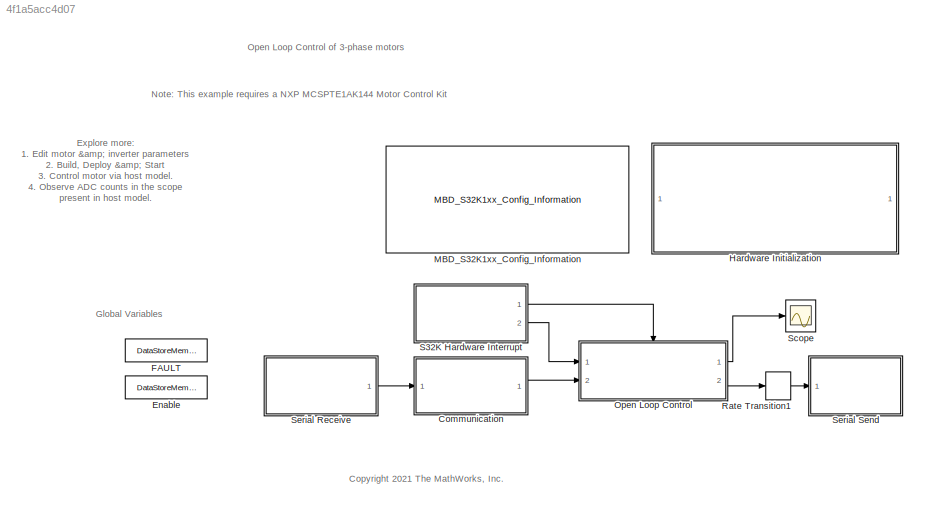
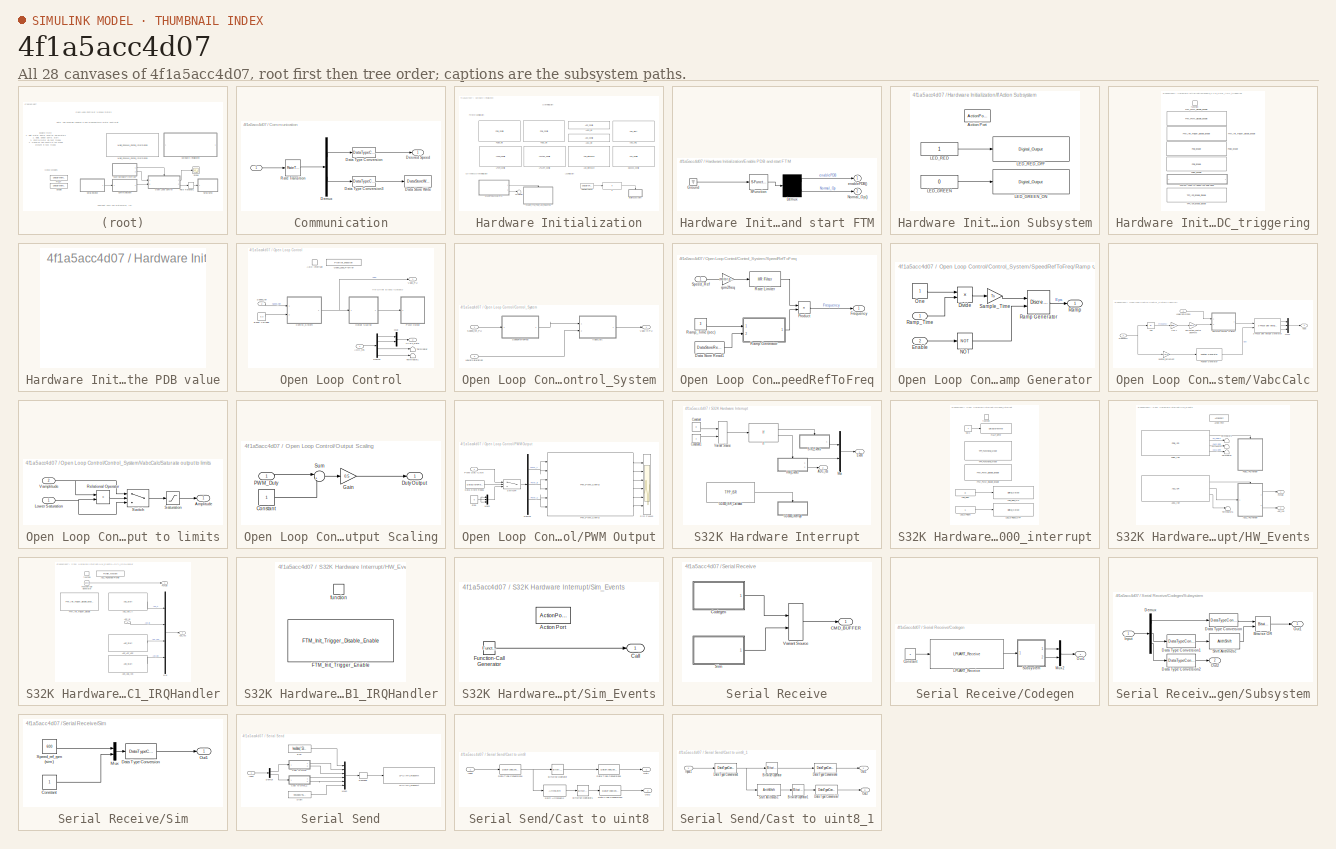
[diagram: thumbnail index - all 28 canvases of the model, root first then tree order]
MODEL slx_4f1a5acc4d07
KIND model
CONFIG AbsTol = auto
CONFIG EnableMultiTasking = on
CONFIG FixedStep = auto
CONFIG InitFcn = mbd_s32k_consistency_checks(bdroot(gcs));
CONFIG MaxStep = auto
CONFIG MinStep = auto
CONFIG PreLoadFcn = mcb_open_loop_control_MCSPTE1AK144_data;
CONFIG RelTol = 1e-3
CONFIG SampleTimeConstraint = Unconstrained
CONFIG SolverName = FixedStepDiscrete
CONFIG StartTime = 0.0
CONFIG StopTime = 6
BLOCK [SubSystem] Communication
  Ports = [1, 1]
  RequestExecContextInheritance = off
BLOCK [Inport] Communication/ 
BLOCK [DataStoreWrite] Communication/Data Store Write
  DataStoreName = Enable
  IndexOptions = Index vector (dialog)
  Indices = 1
  OutputSizes = 1
  Ports = [1]
BLOCK [DataTypeConversion] Communication/Data Type Conversion
  ConvertRealWorld = Stored Integer (SI)
  OutDataTypeStr = int16
  RndMeth = Simplest
  SaturateOnIntegerOverflow = off
BLOCK [DataTypeConversion] Communication/Data Type Conversion3
  OutDataTypeStr = boolean
  RndMeth = Simplest
  SaturateOnIntegerOverflow = off
BLOCK [Demux] Communication/Demux
  Outputs = 2
  Ports = [1, 2]
BLOCK [Outport] Communication/Desired Speed
  VectorParamsAs1DForOutWhenUnconnected = off
BLOCK [RateTransition] Communication/Rate Transition
  Deterministic = off
  InitialCondition = [0 0]
  OutPortSampleTime = Ts
BLOCK [DataStoreMemory] Enable
  DataStoreName = Enable
  OutDataTypeStr = boolean
  ReadBeforeWriteMsg = warning
  ShowAdditionalParam = off
  WriteAfterReadMsg = warning
  WriteAfterWriteMsg = warning
BLOCK [DataStoreMemory] FAULT
  DataStoreName = FAULT
  OutDataTypeStr = boolean
  ShowAdditionalParam = off
  WriteAfterReadMsg = warning
  WriteAfterWriteMsg = warning
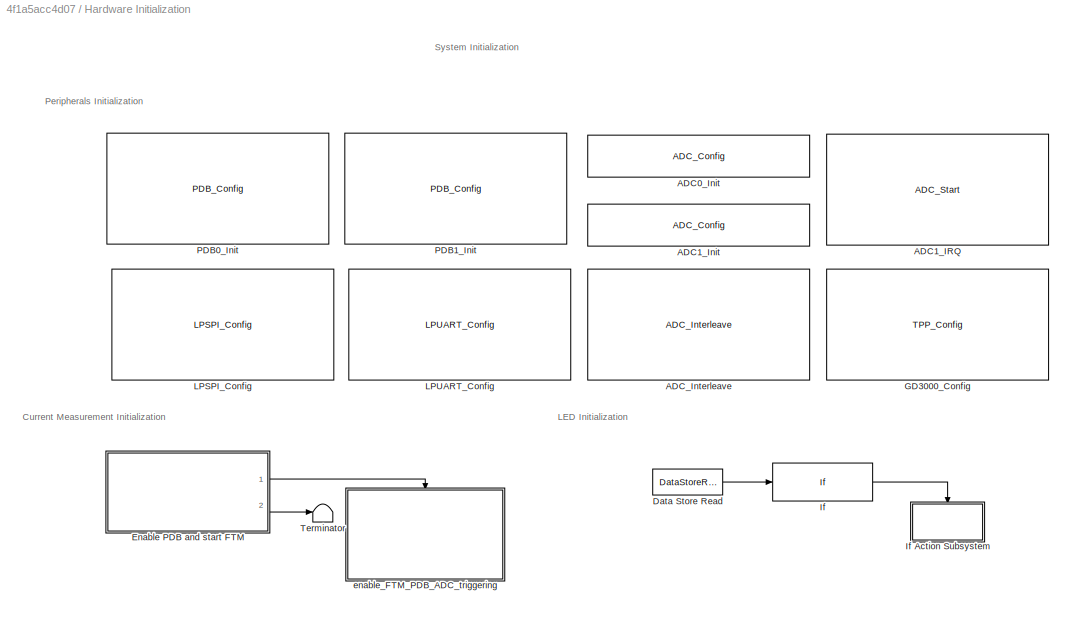
BLOCK [SubSystem] Hardware Initialization
  Ports = []
  Priority = 2
  RequestExecContextInheritance = off
BLOCK [Reference] Hardware Initialization/ADC0_Init  REF=mbd_s32k1xx_ec_toolbox/Motor Control Blocks/ADC Blocks/ADC_Config
  Ports = []
  Priority = 3
  SourceBlock = mbd_s32k1xx_ec_toolbox/Motor Control Blocks/ADC Blocks/ADC_Config
  SourceType = adc_s32k_config_block
BLOCK [Reference] Hardware Initialization/ADC1_IRQ  REF=mbd_s32k1xx_ec_toolbox/Motor Control Blocks/ADC Blocks/ADC_Start
  Ports = []
  Priority = 5
  SourceBlock = mbd_s32k1xx_ec_toolbox/Motor Control Blocks/ADC Blocks/ADC_Start
  SourceType = adc_s32k_start_block
BLOCK [Reference] Hardware Initialization/ADC1_Init  REF=mbd_s32k1xx_ec_toolbox/Motor Control Blocks/ADC Blocks/ADC_Config
  Ports = []
  Priority = 4
  SourceBlock = mbd_s32k1xx_ec_toolbox/Motor Control Blocks/ADC Blocks/ADC_Config
  SourceType = adc_s32k_config_block
BLOCK [Reference] Hardware Initialization/ADC_Interleave  REF=mbd_s32k1xx_ec_toolbox/Motor Control Blocks/ADC Blocks/ADC_Interleave
  Ports = []
  SourceBlock = mbd_s32k1xx_ec_toolbox/Motor Control Blocks/ADC Blocks/ADC_Interleave
  SourceType = adc_s32k_interleave_block
BLOCK [DataStoreRead] Hardware Initialization/Data Store Read
  DataStoreName = FAULT
  IndexOptions = Index vector (dialog)
  Indices = 1
  OutputSizes = 1
  Ports = [0, 1]
BLOCK [SubSystem] Hardware Initialization/Enable PDB and start FTM
  ErrorFcn = Stateflow.Translate.translate
  PermitHierarchicalResolution = ExplicitOnly
  Ports = [0, 2]
  RequestExecContextInheritance = off
  SFBlockType = Chart
  TreatAsAtomicUnit = on
BLOCK [Demux] Hardware Initialization/Enable PDB and start FTM/ Demux 
  Outputs = 2
  Ports = [1, 2]
BLOCK [Ground] Hardware Initialization/Enable PDB and start FTM/ Ground 
BLOCK [S-Function] Hardware Initialization/Enable PDB and start FTM/ SFunction 
  EnableBusSupport = on
  FunctionName = sf_sfun
  PortCounts = [1 1]
  Ports = [1, 1]
  SFcnIsStateOwnerBlock = off
  SFunctionDeploymentMode = off
  Tag = Stateflow S-Function 1
BLOCK [Outport] Hardware Initialization/Enable PDB and start FTM/Normal_Op()
  Port = 2
  VectorParamsAs1DForOutWhenUnconnected = off
BLOCK [Outport] Hardware Initialization/Enable PDB and start FTM/enablePDB()
  VectorParamsAs1DForOutWhenUnconnected = off
BLOCK [Reference] Hardware Initialization/GD3000_Config  REF=mbd_msd_ec_toolbox/TPP/TPP_Config
  Ports = []
  Priority = 1
  SourceBlock = mbd_msd_ec_toolbox/TPP/TPP_Config
  SourceType = tpp_s32k_config
BLOCK [If] Hardware Initialization/If
  IfExpression = u1 == 0
  Ports = [1, 1]
  ShowElse = off
BLOCK [SubSystem] Hardware Initialization/If Action Subsystem
  Ports = [0, 0, 0, 0, 0, 0, 0, 1]
  RequestExecContextInheritance = off
  TreatAsAtomicUnit = on
BLOCK [ActionPort] Hardware Initialization/If Action Subsystem/Action Port
  ActionPortLabel = if(u1 == 0)
BLOCK [Constant] Hardware Initialization/If Action Subsystem/LED_GREEN
  OutDataTypeStr = boolean
  SampleTime = -1
  Value = 0
BLOCK [Reference] Hardware Initialization/If Action Subsystem/LED_GREEN_ON  REF=mbd_s32k1xx_ec_toolbox/GPIO Blocks/Digital_Output
  Ports = [1]
  SourceBlock = mbd_s32k1xx_ec_toolbox/GPIO Blocks/Digital_Output
  SourceType = gpio_s32k_output
BLOCK [Constant] Hardware Initialization/If Action Subsystem/LED_RED
  OutDataTypeStr = boolean
  SampleTime = -1
BLOCK [Reference] Hardware Initialization/If Action Subsystem/LED_RED_OFF  REF=mbd_s32k1xx_ec_toolbox/GPIO Blocks/Digital_Output
  Ports = [1]
  SourceBlock = mbd_s32k1xx_ec_toolbox/GPIO Blocks/Digital_Output
  SourceType = gpio_s32k_output
BLOCK [Reference] Hardware Initialization/LPSPI_Config   REF=mbd_s32k1xx_ec_toolbox/Communication Blocks/SPI Blocks/LPSPI_Config

  Ports = []
  SourceBlock = mbd_s32k1xx_ec_toolbox/Communication Blocks/SPI Blocks/LPSPI_Config
  SourceType = lpspi_s32k_config
BLOCK [Reference] Hardware Initialization/LPUART_Config  REF=mbd_s32k1xx_ec_toolbox/Communication Blocks/UART Blocks/LPUART_Config
  Ports = []
  Priority = 1
  SourceBlock = mbd_s32k1xx_ec_toolbox/Communication Blocks/UART Blocks/LPUART_Config
  SourceType = lpuart_s32k_config
BLOCK [Reference] Hardware Initialization/PDB0_Init  REF=mbd_s32k1xx_ec_toolbox/Motor Control Blocks/PDB Blocks/PDB_Config
  Ports = []
  Priority = 1
  SourceBlock = mbd_s32k1xx_ec_toolbox/Motor Control Blocks/PDB Blocks/PDB_Config
  SourceType = pdb_s32k_config_block
BLOCK [Reference] Hardware Initialization/PDB1_Init  REF=mbd_s32k1xx_ec_toolbox/Motor Control Blocks/PDB Blocks/PDB_Config
  Ports = []
  Priority = 2
  SourceBlock = mbd_s32k1xx_ec_toolbox/Motor Control Blocks/PDB Blocks/PDB_Config
  SourceType = pdb_s32k_config_block
BLOCK [Terminator] Hardware Initialization/Terminator
BLOCK [SubSystem] Hardware Initialization/enable_FTM_PDB_ADC_triggering
  Ports = [0, 0, 0, 1]
  RTWSystemCode = Inline
  RequestExecContextInheritance = off
  TreatAsAtomicUnit = on
BLOCK [SubSystem] Hardware Initialization/enable_FTM_PDB_ADC_triggering/Custom code to reload the PDB value
  CopyFcn = cccopyfcn(gcb)
  OpenFcn = ccopenfcn('System Outputs Function')
  Ports = []
  Priority = 6
  RequestExecContextInheritance = off
BLOCK [Reference] Hardware Initialization/enable_FTM_PDB_ADC_triggering/FTM_Init_Trigger_Disable_Enable  REF=mbd_s32k1xx_ec_toolbox/Motor Control Blocks/FTM Blocks/FTM_Init_Trigger_Disable_Enable
  Ports = []
  Priority = 3
  SourceBlock = mbd_s32k1xx_ec_toolbox/Motor Control Blocks/FTM Blocks/FTM_Init_Trigger_Disable_Enable
  SourceType = FTM_s32k_init_disen
BLOCK [Reference] Hardware Initialization/enable_FTM_PDB_ADC_triggering/FTM_PWM_Disable_Enable  REF=mbd_s32k1xx_ec_toolbox/Motor Control Blocks/FTM Blocks/FTM_PWM_Disable_Enable
  Ports = []
  Priority = 1
  SourceBlock = mbd_s32k1xx_ec_toolbox/Motor Control Blocks/FTM Blocks/FTM_PWM_Disable_Enable
  SourceType = FTM_s32k_pwm_disen
BLOCK [Reference] Hardware Initialization/enable_FTM_PDB_ADC_triggering/PDB0_Enable  REF=mbd_s32k1xx_ec_toolbox/Motor Control Blocks/PDB Blocks/PDB_Enable
  Ports = []
  Priority = 4
  SourceBlock = mbd_s32k1xx_ec_toolbox/Motor Control Blocks/PDB Blocks/PDB_Enable
  SourceType = pdb_s32k_enable_block
BLOCK [Reference] Hardware Initialization/enable_FTM_PDB_ADC_triggering/PDB1_Enable  REF=mbd_s32k1xx_ec_toolbox/Motor Control Blocks/PDB Blocks/PDB_Enable
  Ports = []
  Priority = 5
  SourceBlock = mbd_s32k1xx_ec_toolbox/Motor Control Blocks/PDB Blocks/PDB_Enable
  SourceType = pdb_s32k_enable_block
BLOCK [Reference] Hardware Initialization/enable_FTM_PDB_ADC_triggering/TPP_ISR_Enable_Disable  REF=mbd_msd_ec_toolbox/TPP/TPP_ISR_Enable_Disable
  Ports = []
  Priority = 7
  SourceBlock = mbd_msd_ec_toolbox/TPP/TPP_ISR_Enable_Disable
  SourceType = tpp_s32k_int_en_dis
BLOCK [TriggerPort] Hardware Initialization/enable_FTM_PDB_ADC_triggering/function
  Ports = []
  StatesWhenEnabling = held
  TriggerType = function-call
  VariantControl = (inherit)
BLOCK [Reference] MBD_S32K1xx_Config_Information  REF=mbd_s32k1xx_ec_toolbox/MBD_S32K1xx_Config_Information
  Ports = []
  Priority = 1
  SourceBlock = mbd_s32k1xx_ec_toolbox/MBD_S32K1xx_Config_Information
  SourceType = MBDTBX_EC_S32K
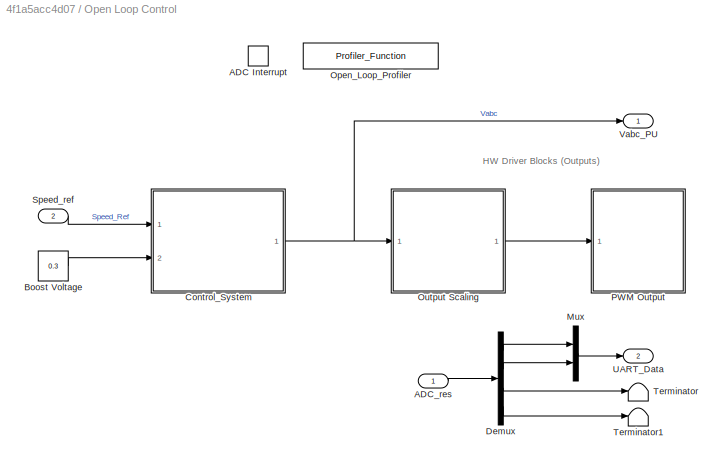
BLOCK [SubSystem] Open Loop Control
  Ports = [2, 2, 0, 1]
  RTWSystemCode = Nonreusable function
  RequestExecContextInheritance = off
BLOCK [TriggerPort] Open Loop Control/ADC Interrupt
  Ports = []
  StatesWhenEnabling = held
  TriggerType = function-call
  VariantControl = Variant
BLOCK [Inport] Open Loop Control/ADC_res
BLOCK [Constant] Open Loop Control/Boost Voltage
  OutDataTypeStr = dataType
  Value = 0.3
BLOCK [SubSystem] Open Loop Control/Control_System
  Ports = [2, 1]
  RequestExecContextInheritance = off
BLOCK [Inport] Open Loop Control/Control_System/LowerSaturation
  Port = 2
BLOCK [SubSystem] Open Loop Control/Control_System/SpeedRefToFreq
  Ports = [1, 1]
  RequestExecContextInheritance = off
BLOCK [DataStoreRead] Open Loop Control/Control_System/SpeedRefToFreq/Data Store Read1
  DataStoreName = Enable
  IndexOptions = Index vector (dialog)
  Indices = 1
  OutputSizes = 1
  Ports = [0, 1]
BLOCK [Outport] Open Loop Control/Control_System/SpeedRefToFreq/Frequency
BLOCK [Product] Open Loop Control/Control_System/SpeedRefToFreq/Product
  OutDataTypeStr = Inherit: Same as first input
  Ports = [2, 1]
  RndMeth = Simplest
BLOCK [SubSystem] Open Loop Control/Control_System/SpeedRefToFreq/Ramp Generator
  Ports = [2, 1]
  RequestExecContextInheritance = off
BLOCK [Product] Open Loop Control/Control_System/SpeedRefToFreq/Ramp Generator/Divide
  Inputs = */
  OutDataTypeStr = Inherit: Same as first input
  Ports = [2, 1]
  RndMeth = Simplest
BLOCK [Inport] Open Loop Control/Control_System/SpeedRefToFreq/Ramp Generator/Enable
  Port = 2
BLOCK [Logic] Open Loop Control/Control_System/SpeedRefToFreq/Ramp Generator/NOT
  AllPortsSameDT = off
  IconShape = distinctive
  Operator = NOT
  OutDataTypeStr = boolean
  Ports = [1, 1]
BLOCK [Constant] Open Loop Control/Control_System/SpeedRefToFreq/Ramp Generator/One
  OutDataTypeStr = dataType
  SampleTime = -1
BLOCK [Outport] Open Loop Control/Control_System/SpeedRefToFreq/Ramp Generator/Ramp
BLOCK [DiscreteIntegrator] Open Loop Control/Control_System/SpeedRefToFreq/Ramp Generator/Ramp Generator
  ExternalReset = sampled level
  ICPrevOutput = DiscIntNeverNeededParam
  ICPrevScaledInput = DiscIntNeverNeededParam
  IntegratorMethod = Accumulation: Forward Euler
  LimitOutput = on
  LowerSaturationLimit = 0
  OutDataTypeStr = dataType
  Ports = [2, 1]
  RndMeth = Simplest
  SampleTime = -1
  UpperSaturationLimit = 1
  gainval = 1
BLOCK [Inport] Open Loop Control/Control_System/SpeedRefToFreq/Ramp Generator/Ramp_Time
BLOCK [Gain] Open Loop Control/Control_System/SpeedRefToFreq/Ramp Generator/Sample_Time
  Gain = Ts
  OutDataTypeStr = Inherit: Same as input
  RndMeth = Simplest
BLOCK [Constant] Open Loop Control/Control_System/SpeedRefToFreq/Ramp_Time (sec)
  OutDataTypeStr = dataType
  SampleTime = -1
  Value = 3
BLOCK [Reference] Open Loop Control/Control_System/SpeedRefToFreq/Rate Limiter  REF=mcbcontrolslib/IIR Filter
  Ports = [1, 1]
  SourceBlock = mcbcontrolslib/IIR Filter
  SourceProductBaseCode = MT
  SourceType = IIR Filter
BLOCK [Inport] Open Loop Control/Control_System/SpeedRefToFreq/Speed_Ref
BLOCK [Gain] Open Loop Control/Control_System/SpeedRefToFreq/rpm2freq
  Gain = motor.polePairs/60
  OutDataTypeStr = dataType
  RndMeth = Simplest
BLOCK [Inport] Open Loop Control/Control_System/Speed_ref_PU
BLOCK [Outport] Open Loop Control/Control_System/Vabc in PU
  VectorParamsAs1DForOutWhenUnconnected = off
BLOCK [SubSystem] Open Loop Control/Control_System/VabcCalc
  Ports = [2, 1]
  RequestExecContextInheritance = off
BLOCK [Reference] Open Loop Control/Control_System/VabcCalc/3-Phase Sine Voltage Generator  REF=mcbcontrolslib/3-Phase Sine Voltage Generator
  Ports = [2, 3]
  SourceBlock = mcbcontrolslib/3-Phase Sine Voltage Generator
  SourceProductBaseCode = MT
  SourceType = 3-Phase Sine Voltage Generator
BLOCK [Abs] Open Loop Control/Control_System/VabcCalc/Abs
  RndMeth = Simplest
  SaturateOnIntegerOverflow = off
BLOCK [Gain] Open Loop Control/Control_System/VabcCalc/Correction_Factor sinePWM
  Gain = 2/sqrt(3)
  OutDataTypeStr = Inherit: Same as input
  RndMeth = Simplest
BLOCK [Inport] Open Loop Control/Control_System/VabcCalc/Frequency
BLOCK [Inport] Open Loop Control/Control_System/VabcCalc/LowerSaturation
  Port = 2
BLOCK [Mux] Open Loop Control/Control_System/VabcCalc/Mux1
  DisplayOption = bar
  Inputs = 3
  Ports = [3, 1]
BLOCK [Reference] Open Loop Control/Control_System/VabcCalc/Position Generator  REF=mcbcontrolslib/Position Generator
  Ports = [1, 1]
  SourceBlock = mcbcontrolslib/Position Generator
  SourceProductBaseCode = MT
  SourceType = Position Generator
BLOCK [SubSystem] Open Loop Control/Control_System/VabcCalc/Saturate output to limits
  Ports = [2, 1]
  RequestExecContextInheritance = off
BLOCK [Outport] Open Loop Control/Control_System/VabcCalc/Saturate output to limits/Amplitude
BLOCK [Inport] Open Loop Control/Control_System/VabcCalc/Saturate output to limits/Lower Saturation
BLOCK [RelationalOperator] Open Loop Control/Control_System/VabcCalc/Saturate output to limits/Relational Operator
  InputSameDT = off
  Operator = >
  OutDataTypeStr = boolean
  Ports = [2, 1]
  RndMeth = Simplest
BLOCK [Saturate] Open Loop Control/Control_System/VabcCalc/Saturate output to limits/Saturation
  LowerLimit = 0
  RndMeth = Simplest
  UpperLimit = 0.95
BLOCK [Switch] Open Loop Control/Control_System/VabcCalc/Saturate output to limits/Switch
  Criteria = u2 > Threshold
  InputSameDT = off
  SaturateOnIntegerOverflow = off
BLOCK [Inport] Open Loop Control/Control_System/VabcCalc/Saturate output to limits/Vamplitude
  Port = 2
BLOCK [Gain] Open Loop Control/Control_System/VabcCalc/V-by-f
  Gain = 1/motor.base_freq
  OutDataTypeStr = Inherit: Same as input
  RndMeth = Simplest
BLOCK [Outport] Open Loop Control/Control_System/VabcCalc/Vabc
BLOCK [Gain] Open Loop Control/Control_System/VabcCalc/position_increment
  Gain = 2*pi*Ts
  OutDataTypeStr = Inherit: Same as input
  RndMeth = Simplest
BLOCK [Demux] Open Loop Control/Demux
  Ports = [1, 4]
BLOCK [Mux] Open Loop Control/Mux
  DisplayOption = bar
  Inputs = 2
  Ports = [2, 1]
BLOCK [Reference] Open Loop Control/Open_Loop_Profiler  REF=mbd_s32k1xx_ec_toolbox/Utility Blocks/Profiler_Function
  Ports = []
  SourceBlock = mbd_s32k1xx_ec_toolbox/Utility Blocks/Profiler_Function
  SourceType = profiler_s32k_func
BLOCK [SubSystem] Open Loop Control/Output Scaling
  Ports = [1, 1]
  RequestExecContextInheritance = off
BLOCK [Constant] Open Loop Control/Output Scaling/Constant
  OutDataTypeStr = dataType
BLOCK [Outport] Open Loop Control/Output Scaling/Duty Output
BLOCK [Gain] Open Loop Control/Output Scaling/Gain
  Gain = 0.5
  OutDataTypeStr = Inherit: Same as input
  RndMeth = Simplest
BLOCK [Inport] Open Loop Control/Output Scaling/PWM_Duty
BLOCK [Sum] Open Loop Control/Output Scaling/Sum
  AccumDataTypeStr = Inherit: Same as first input
  Inputs = |++
  OutDataTypeStr = Inherit: Same as first input
  Ports = [2, 1]
  RndMeth = Simplest
BLOCK [SubSystem] Open Loop Control/PWM Output
  Ports = [1]
  RequestExecContextInheritance = off
BLOCK [DataStoreRead] Open Loop Control/PWM Output/Data Store Read1
  DataStoreName = Enable
  IndexOptions = Index vector (dialog)
  Indices = 1
  OutputSizes = 1
  Ports = [0, 1]
BLOCK [Demux] Open Loop Control/PWM Output/Demux
  Outputs = 3
  Ports = [1, 3]
BLOCK [Reference] Open Loop Control/PWM Output/FTM_PWM_Config  REF=mbd_s32k1xx_ec_toolbox/Motor Control Blocks/FTM Blocks/FTM_PWM_Config
  Ports = [6, 6]
  SourceBlock = mbd_s32k1xx_ec_toolbox/Motor Control Blocks/FTM Blocks/FTM_PWM_Config
  SourceType = FTM_s32k_pwm_config_block
BLOCK [Mux] Open Loop Control/PWM Output/Mux2
  DisplayOption = bar
  Inputs = 3
  Ports = [3, 1]
BLOCK [Inport] Open Loop Control/PWM Output/PWM Duty Cycle
BLOCK [Scope] Open Loop Control/PWM Output/Sim PWMs
  Floating = off
  NumInputPorts = 6
  Ports = [6]
  ScopeSpecificationString = Simulink.scopes.TimeScopeBlockCfg('CurrentConfiguration', extmgr.ConfigurationSet(extmgr.Configuration('Core','General UI',true),extmgr.Configuration('Core','Source UI',true),extmgr.Configuration('Sources','WiredSimulink',true,'DataLoggingVariableName','ScopeData6'),extmgr.Configuration('Visuals','Time Domain',true,'SerializedDisplays',{struct('MinYLimReal','-0.07187','MaxYLimReal','0.64687','YLab...<+1547ch>
BLOCK [Switch] Open Loop Control/PWM Output/Switch4
  InputSameDT = off
  RndMeth = Simplest
  SaturateOnIntegerOverflow = off
  Threshold = 0.5
BLOCK [Constant] Open Loop Control/PWM Output/stop
  OutDataTypeStr = dataType
  Value = 0
BLOCK [Inport] Open Loop Control/Speed_ref
  Port = 2
BLOCK [Terminator] Open Loop Control/Terminator
BLOCK [Terminator] Open Loop Control/Terminator1
BLOCK [Outport] Open Loop Control/UART_Data
  Port = 2
BLOCK [Outport] Open Loop Control/Vabc_PU
  VectorParamsAs1DForOutWhenUnconnected = off
BLOCK [RateTransition] Rate Transition1
  Deterministic = off
  Integrity = off
BLOCK [SubSystem] S32K Hardware Interrupt
  Ports = [0, 2]
  RequestExecContextInheritance = off
BLOCK [Outport] S32K Hardware Interrupt/ADC_res
  Port = 2
BLOCK [Constant] S32K Hardware Interrupt/Constant
  OutDataTypeStr = Inherit: Inherit via back propagation
  SampleTime = -1
  Value = 0
BLOCK [Constant] S32K Hardware Interrupt/Constant1
  OutDataTypeStr = Inherit: Inherit via back propagation
  SampleTime = -1
BLOCK [Outport] S32K Hardware Interrupt/Event
BLOCK [SubSystem] S32K Hardware Interrupt/GD3000_interrupt
  Ports = [0, 0, 0, 1]
  RequestExecContextInheritance = off
  TreatAsAtomicUnit = on
BLOCK [DataStoreWrite] S32K Hardware Interrupt/GD3000_interrupt/FAULT_write
  DataStoreName = FAULT
  IndexOptions = Index vector (dialog)
  Indices = 1
  OutputSizes = 1
  Ports = [1]
BLOCK [Reference] S32K Hardware Interrupt/GD3000_interrupt/FTM_PWM_Disable_Enable  REF=mbd_s32k1xx_ec_toolbox/Motor Control Blocks/FTM Blocks/FTM_PWM_Disable_Enable
  Ports = []
  SourceBlock = mbd_s32k1xx_ec_toolbox/Motor Control Blocks/FTM Blocks/FTM_PWM_Disable_Enable
  SourceType = FTM_s32k_pwm_disen
BLOCK [Constant] S32K Hardware Interrupt/GD3000_interrupt/LED_GREEN
  OutDataTypeStr = boolean
  SampleTime = -1
BLOCK [Reference] S32K Hardware Interrupt/GD3000_interrupt/LED_GREEN_OFF  REF=mbd_s32k1xx_ec_toolbox/GPIO Blocks/Digital_Output
  Ports = [1]
  SourceBlock = mbd_s32k1xx_ec_toolbox/GPIO Blocks/Digital_Output
  SourceType = gpio_s32k_output
BLOCK [Constant] S32K Hardware Interrupt/GD3000_interrupt/LED_RED
  OutDataTypeStr = boolean
  SampleTime = -1
  Value = 0
BLOCK [Reference] S32K Hardware Interrupt/GD3000_interrupt/LED_RED_ON  REF=mbd_s32k1xx_ec_toolbox/GPIO Blocks/Digital_Output
  Ports = [1]
  SourceBlock = mbd_s32k1xx_ec_toolbox/GPIO Blocks/Digital_Output
  SourceType = gpio_s32k_output
BLOCK [Constant] S32K Hardware Interrupt/GD3000_interrupt/NOK
  OutDataTypeStr = boolean
BLOCK [Reference] S32K Hardware Interrupt/GD3000_interrupt/TPP_Functional_Mode  REF=mbd_msd_ec_toolbox/TPP/TPP_Functional_Mode
  Ports = []
  SourceBlock = mbd_msd_ec_toolbox/TPP/TPP_Functional_Mode
  SourceType = TPP_functional_mode
BLOCK [TriggerPort] S32K Hardware Interrupt/GD3000_interrupt/function
  Ports = []
  StatesWhenEnabling = held
  TriggerType = function-call
  VariantControl = Variant
BLOCK [Reference] S32K Hardware Interrupt/GD300_ISR_Callback   REF=mbd_msd_ec_toolbox/TPP/TPP_ISR
  Ports = [0, 1]
  SourceBlock = mbd_msd_ec_toolbox/TPP/TPP_ISR
  SourceType = tpp_s32k_isr
BLOCK [SubSystem] S32K Hardware Interrupt/HW_Events
  Ports = [0, 2, 0, 0, 0, 0, 0, 1]
  RequestExecContextInheritance = off
  TreatAsAtomicUnit = on
BLOCK [SubSystem] S32K Hardware Interrupt/HW_Events/ADC1_IRQHandler
  Ports = [1, 2, 0, 1]
  RequestExecContextInheritance = off
  TreatAsAtomicUnit = on
BLOCK [Reference] S32K Hardware Interrupt/HW_Events/ADC1_IRQHandler/ADC_AD4_IA  REF=mbd_s32k1xx_ec_toolbox/Motor Control Blocks/ADC Blocks/ADC_Start
  Ports = [0, 1]
  Priority = 2
  SourceBlock = mbd_s32k1xx_ec_toolbox/Motor Control Blocks/ADC Blocks/ADC_Start
  SourceType = adc_s32k_start_block
BLOCK [Reference] S32K Hardware Interrupt/HW_Events/ADC1_IRQHandler/ADC_AD6_IDC  REF=mbd_s32k1xx_ec_toolbox/Motor Control Blocks/ADC Blocks/ADC_Start
  Ports = [0, 1]
  Priority = 4
  SourceBlock = mbd_s32k1xx_ec_toolbox/Motor Control Blocks/ADC Blocks/ADC_Start
  SourceType = adc_s32k_start_block
BLOCK [Reference] S32K Hardware Interrupt/HW_Events/ADC1_IRQHandler/ADC_AD7_VDC  REF=mbd_s32k1xx_ec_toolbox/Motor Control Blocks/ADC Blocks/ADC_Start
  Ports = [0, 1]
  Priority = 3
  SourceBlock = mbd_s32k1xx_ec_toolbox/Motor Control Blocks/ADC Blocks/ADC_Start
  SourceType = adc_s32k_start_block
BLOCK [Inport] S32K Hardware Interrupt/HW_Events/ADC1_IRQHandler/ADC_IB
BLOCK [Reference] S32K Hardware Interrupt/HW_Events/ADC1_IRQHandler/ADC_IRQHandlerProfiler  REF=mbd_s32k1xx_ec_toolbox/Utility Blocks/Profiler_Function
  Ports = []
  SourceBlock = mbd_s32k1xx_ec_toolbox/Utility Blocks/Profiler_Function
  SourceType = profiler_s32k_func
BLOCK [Outport] S32K Hardware Interrupt/HW_Events/ADC1_IRQHandler/ADC_res
  Port = 2
  VectorParamsAs1DForOutWhenUnconnected = off
BLOCK [Reference] S32K Hardware Interrupt/HW_Events/ADC1_IRQHandler/FTM_Init_Trigger_Disable  REF=mbd_s32k1xx_ec_toolbox/Motor Control Blocks/FTM Blocks/FTM_Init_Trigger_Disable_Enable
  Ports = []
  Priority = 1
  SourceBlock = mbd_s32k1xx_ec_toolbox/Motor Control Blocks/FTM Blocks/FTM_Init_Trigger_Disable_Enable
  SourceType = FTM_s32k_init_disen
BLOCK [Outport] S32K Hardware Interrupt/HW_Events/ADC1_IRQHandler/FcnCall
  VectorParamsAs1DForOutWhenUnconnected = off
BLOCK [Reference] S32K Hardware Interrupt/HW_Events/ADC1_IRQHandler/Function-Call Generator  REF=simulink/Ports &
Subsystems/Function-Call
Generator
  Ports = [0, 1]
  SourceBlock = simulink/Ports &\nSubsystems/Function-Call\nGenerator
  SourceProductBaseCode = SL
  SourceType = Function-Call Generator
BLOCK [Mux] S32K Hardware Interrupt/HW_Events/ADC1_IRQHandler/Mux
  DisplayOption = bar
  Ports = [4, 1]
BLOCK [TriggerPort] S32K Hardware Interrupt/HW_Events/ADC1_IRQHandler/function
  Ports = []
  StatesWhenEnabling = held
  TriggerType = function-call
  VariantControl = (inherit)
BLOCK [Reference] S32K Hardware Interrupt/HW_Events/ADC1_ISR  REF=mbd_s32k1xx_ec_toolbox/Motor Control Blocks/ADC Blocks/ADC_ISR
  Ports = [0, 3]
  SourceBlock = mbd_s32k1xx_ec_toolbox/Motor Control Blocks/ADC Blocks/ADC_ISR
  SourceType = adc_s32k_isr_block
BLOCK [Outport] S32K Hardware Interrupt/HW_Events/ADC_res
  Port = 2
  VectorParamsAs1DForOutWhenUnconnected = off
BLOCK [ActionPort] S32K Hardware Interrupt/HW_Events/Action Port
  ActionPortLabel = elseif(u1 == 1)
BLOCK [Outport] S32K Hardware Interrupt/HW_Events/FcnCall
  VectorParamsAs1DForOutWhenUnconnected = off
BLOCK [SubSystem] S32K Hardware Interrupt/HW_Events/PDB1_IRQHandler
  Ports = [0, 0, 0, 1]
  RequestExecContextInheritance = off
  TreatAsAtomicUnit = on
BLOCK [Reference] S32K Hardware Interrupt/HW_Events/PDB1_IRQHandler/FTM_Init_Trigger_Enable  REF=mbd_s32k1xx_ec_toolbox/Motor Control Blocks/FTM Blocks/FTM_Init_Trigger_Disable_Enable
  Ports = []
  SourceBlock = mbd_s32k1xx_ec_toolbox/Motor Control Blocks/FTM Blocks/FTM_Init_Trigger_Disable_Enable
  SourceType = FTM_s32k_init_disen
BLOCK [TriggerPort] S32K Hardware Interrupt/HW_Events/PDB1_IRQHandler/function
  Ports = []
  StatesWhenEnabling = held
  TriggerType = function-call
  VariantControl = (inherit)
BLOCK [Reference] S32K Hardware Interrupt/HW_Events/PDB1_ISR  REF=mbd_s32k1xx_ec_toolbox/Motor Control Blocks/PDB Blocks/PDB_ISR
  Ports = [0, 4]
  Priority = 8
  SourceBlock = mbd_s32k1xx_ec_toolbox/Motor Control Blocks/PDB Blocks/PDB_ISR
  SourceType = pdb_s32k_isr_block
BLOCK [Terminator] S32K Hardware Interrupt/HW_Events/Terminator
BLOCK [Terminator] S32K Hardware Interrupt/HW_Events/Terminator1
BLOCK [Terminator] S32K Hardware Interrupt/HW_Events/Terminator2
BLOCK [Terminator] S32K Hardware Interrupt/HW_Events/Terminator6
BLOCK [If] S32K Hardware Interrupt/If
  ElseIfExpressions = u1 == 1
  IfExpression = u1 == 0
  Ports = [1, 2]
  ShowElse = off
BLOCK [Mux] S32K Hardware Interrupt/Mux
  DisplayOption = bar
  Inputs = 2
  Ports = [2, 1]
BLOCK [SubSystem] S32K Hardware Interrupt/Sim_Events
  Ports = [0, 1, 0, 0, 0, 0, 0, 1]
  RequestExecContextInheritance = off
  TreatAsAtomicUnit = on
BLOCK [ActionPort] S32K Hardware Interrupt/Sim_Events/Action Port
  ActionPortLabel = if(u1 == 0)
BLOCK [Outport] S32K Hardware Interrupt/Sim_Events/Call
  VectorParamsAs1DForOutWhenUnconnected = off
BLOCK [Reference] S32K Hardware Interrupt/Sim_Events/Function-Call Generator  REF=simulink/Ports &
Subsystems/Function-Call
Generator
  Ports = [0, 1]
  SourceBlock = simulink/Ports &\nSubsystems/Function-Call\nGenerator
  SourceProductBaseCode = SL
  SourceType = Function-Call Generator
BLOCK [VariantSource] S32K Hardware Interrupt/Variant Source
  Ports = [2, 1]
  VariantControlMode = sim codegen switching
BLOCK [Scope] Scope
  Floating = off
  NumInputPorts = 1
  Ports = [1]
  ScopeSpecificationString = Simulink.scopes.TimeScopeBlockCfg('CurrentConfiguration', extmgr.ConfigurationSet(extmgr.Configuration('Core','General UI',true),extmgr.Configuration('Core','Source UI',true),extmgr.Configuration('Sources','WiredSimulink',true,'DataLoggingVariableName','ScopeData1'),extmgr.Configuration('Visuals','Time Domain',true,'SerializedDisplays',{struct('MinYLimReal','-0.86603','MaxYLimReal','0.86603','YLab...<+1524ch>
BLOCK [SubSystem] Serial Receive
  Ports = [0, 1]
  RTWMemSecFuncExecute = code_ramfuncs
  RTWSystemCode = Nonreusable function
  RequestExecContextInheritance = off
  SystemSampleTime = 1e-3
BLOCK [Outport] Serial Receive/CMD_BUFFER
  InitialOutput = [16384 0]
  VectorParamsAs1DForOutWhenUnconnected = off
BLOCK [SubSystem] Serial Receive/Codegen
  Ports = [0, 1]
  RequestExecContextInheritance = off
BLOCK [Constant] Serial Receive/Codegen/Constant
  OutDataTypeStr = Inherit: Inherit via back propagation
  Value = 3
BLOCK [Reference] Serial Receive/Codegen/LPUART_Receive  REF=mbd_s32k1xx_ec_toolbox/Communication Blocks/UART Blocks/LPUART_Receive
  Ports = [1, 1]
  SourceBlock = mbd_s32k1xx_ec_toolbox/Communication Blocks/UART Blocks/LPUART_Receive
  SourceType = lpuart_s32k_receive
BLOCK [Mux] Serial Receive/Codegen/Mux2
  DisplayOption = bar
  Inputs = 2
  Ports = [2, 1]
BLOCK [Outport] Serial Receive/Codegen/Out1
BLOCK [SubSystem] Serial Receive/Codegen/Subsystem
  Ports = [1, 2]
  RequestExecContextInheritance = off
BLOCK [Reference] Serial Receive/Codegen/Subsystem/Bitwise OR  REF=simulink/Logic and Bit
Operations/Bitwise
Operator
  Ports = [2, 1]
  SourceBlock = simulink/Logic and Bit\nOperations/Bitwise\nOperator
  SourceProductBaseCode = SL
  SourceType = Bitwise Operator
BLOCK [DataTypeConversion] Serial Receive/Codegen/Subsystem/Data Type Conversion
  ConvertRealWorld = Stored Integer (SI)
  OutDataTypeStr = uint16
  RndMeth = Simplest
  SaturateOnIntegerOverflow = off
BLOCK [DataTypeConversion] Serial Receive/Codegen/Subsystem/Data Type Conversion1
  ConvertRealWorld = Stored Integer (SI)
  OutDataTypeStr = uint16
  RndMeth = Simplest
  SaturateOnIntegerOverflow = off
BLOCK [DataTypeConversion] Serial Receive/Codegen/Subsystem/Data Type Conversion2
  ConvertRealWorld = Stored Integer (SI)
  OutDataTypeStr = uint16
  RndMeth = Simplest
  SaturateOnIntegerOverflow = off
BLOCK [Demux] Serial Receive/Codegen/Subsystem/Demux
  Outputs = 3
  Ports = [1, 3]
BLOCK [Inport] Serial Receive/Codegen/Subsystem/Input
  PortDimensions = 3
BLOCK [Outport] Serial Receive/Codegen/Subsystem/Out1
BLOCK [Outport] Serial Receive/Codegen/Subsystem/Out2
  Port = 2
BLOCK [ArithShift] Serial Receive/Codegen/Subsystem/Shift Arithmetic
  BitShiftDirection = Left
  BitShiftNumber = 8
  InputPortMap = u0
  Ports = [1, 1]
BLOCK [SubSystem] Serial Receive/Sim
  Ports = [0, 1]
  RequestExecContextInheritance = off
BLOCK [Constant] Serial Receive/Sim/Constant
  OutDataTypeStr = dataType
BLOCK [DataTypeConversion] Serial Receive/Sim/Data Type Conversion
  OutDataTypeStr = int16
  RndMeth = Simplest
  SaturateOnIntegerOverflow = off
BLOCK [Mux] Serial Receive/Sim/Mux
  DisplayOption = bar
  Inputs = 2
  Ports = [2, 1]
BLOCK [Outport] Serial Receive/Sim/Out1
BLOCK [Constant] Serial Receive/Sim/Speed_ref_rpm (sim)
  OutDataTypeStr = dataType
  SampleTime = -1
  Value = 600
BLOCK [VariantSource] Serial Receive/Variant Source
  Ports = [2, 1]
  VariantControlMode = sim codegen switching
BLOCK [SubSystem] Serial Send
  Ports = [1]
  RequestExecContextInheritance = off
  SystemSampleTime = Ts_uart
  TreatAsAtomicUnit = on
BLOCK [SubSystem] Serial Send/Cast to uint8
  Ports = [1, 2]
  RequestExecContextInheritance = off
BLOCK [Reference] Serial Send/Cast to uint8/Bitwise Operator  REF=simulink/Logic and Bit
Operations/Bitwise
Operator
  Ports = [1, 1]
  SourceBlock = simulink/Logic and Bit\nOperations/Bitwise\nOperator
  SourceProductBaseCode = SL
  SourceType = Bitwise Operator
BLOCK [Reference] Serial Send/Cast to uint8/Bitwise Operator1  REF=simulink/Logic and Bit
Operations/Bitwise
Operator
  Ports = [1, 1]
  SourceBlock = simulink/Logic and Bit\nOperations/Bitwise\nOperator
  SourceProductBaseCode = SL
  SourceType = Bitwise Operator
BLOCK [DataTypeConversion] Serial Send/Cast to uint8/Data Type Conversion4
  ConvertRealWorld = Stored Integer (SI)
  OutDataTypeStr = uint16
  RndMeth = Simplest
  SaturateOnIntegerOverflow = off
BLOCK [DataTypeConversion] Serial Send/Cast to uint8/Data Type Conversion6
  OutDataTypeStr = uint8
  RndMeth = Simplest
  SaturateOnIntegerOverflow = off
BLOCK [DataTypeConversion] Serial Send/Cast to uint8/Data Type Conversion7
  OutDataTypeStr = uint8
  RndMeth = Simplest
  SaturateOnIntegerOverflow = off
BLOCK [Inport] Serial Send/Cast to uint8/Input
BLOCK [Outport] Serial Send/Cast to uint8/Out1
BLOCK [Outport] Serial Send/Cast to uint8/Out2
  Port = 2
BLOCK [ArithShift] Serial Send/Cast to uint8/Shift Arithmetic
  BitShiftDirection = Right
  BitShiftNumber = 8
  InputPortMap = u0
  Ports = [1, 1]
BLOCK [SubSystem] Serial Send/Cast to uint8_1
  Ports = [1, 2]
  RequestExecContextInheritance = off
BLOCK [Reference] Serial Send/Cast to uint8_1/Bitwise Operator  REF=simulink/Logic and Bit
Operations/Bitwise
Operator
  Ports = [1, 1]
  SourceBlock = simulink/Logic and Bit\nOperations/Bitwise\nOperator
  SourceProductBaseCode = SL
  SourceType = Bitwise Operator
BLOCK [Reference] Serial Send/Cast to uint8_1/Bitwise Operator1  REF=simulink/Logic and Bit
Operations/Bitwise
Operator
  Ports = [1, 1]
  SourceBlock = simulink/Logic and Bit\nOperations/Bitwise\nOperator
  SourceProductBaseCode = SL
  SourceType = Bitwise Operator
BLOCK [DataTypeConversion] Serial Send/Cast to uint8_1/Data Type Conversion4
  ConvertRealWorld = Stored Integer (SI)
  OutDataTypeStr = uint16
  RndMeth = Simplest
  SaturateOnIntegerOverflow = off
BLOCK [DataTypeConversion] Serial Send/Cast to uint8_1/Data Type Conversion6
  OutDataTypeStr = uint8
  RndMeth = Simplest
  SaturateOnIntegerOverflow = off
BLOCK [DataTypeConversion] Serial Send/Cast to uint8_1/Data Type Conversion7
  OutDataTypeStr = uint8
  RndMeth = Simplest
  SaturateOnIntegerOverflow = off
BLOCK [Inport] Serial Send/Cast to uint8_1/Input1
BLOCK [Outport] Serial Send/Cast to uint8_1/Out1
BLOCK [Outport] Serial Send/Cast to uint8_1/Out2
  Port = 2
BLOCK [ArithShift] Serial Send/Cast to uint8_1/Shift Arithmetic
  BitShiftDirection = Right
  BitShiftNumber = 8
  InputPortMap = u0
  Ports = [1, 1]
BLOCK [Demux] Serial Send/Demux
  Outputs = 2
  Ports = [1, 2]
BLOCK [Constant] Serial Send/End
  OutDataTypeStr = uint8
  Value = hex2dec('53')
BLOCK [Inport] Serial Send/Input
BLOCK [Reference] Serial Send/LPUART_Transmit  REF=mbd_s32k1xx_ec_toolbox/Communication Blocks/UART Blocks/LPUART_Transmit
  Ports = [1]
  Priority = 2
  SourceBlock = mbd_s32k1xx_ec_toolbox/Communication Blocks/UART Blocks/LPUART_Transmit
  SourceType = lpuart_s32k_transmit
BLOCK [Mux] Serial Send/Mux2
  DisplayOption = bar
  Inputs = 6
  Ports = [6, 1]
BLOCK [Reshape] Serial Send/Reshape
  Ports = [1, 1]
BLOCK [Constant] Serial Send/Start
  OutDataTypeStr = uint8
  Value = hex2dec('45')
ANNOTATION (root): Note: This example requires a NXP MCSPTE1AK144 Motor Control Kit
ANNOTATION (root): Explore more: 1. Edit motor & inverter parameters 2. Build, Deploy & Start 3. Control motor via host model . 4. Observe ADC counts in the scope present in host model.
ANNOTATION (root): <copyright redacted>
ANNOTATION (root): Global Variables
ANNOTATION (root): Open Loop Control of 3-phase motors
ANNOTATION Hardware Initialization: Current Measurement Initialization
ANNOTATION Hardware Initialization: LED Initialization
ANNOTATION Hardware Initialization: Peripherals Initialization
ANNOTATION Hardware Initialization: System Initialization
ANNOTATION Open Loop Control: HW Driver Blocks (Outputs)
LINE Communication/ :1 -> Communication/Rate Transition:1
LINE Communication/Data Type Conversion3:1 -> Communication/Data Store Write:1
LINE Communication/Data Type Conversion:1 -> Communication/Desired Speed:1
LINE Communication/Demux:1 -> Communication/Data Type Conversion:1
LINE Communication/Demux:2 -> Communication/Data Type Conversion3:1
LINE Communication/Rate Transition:1 -> Communication/Demux:1
LINE Communication:1 -> Open Loop Control:2
LINE Hardware Initialization/Data Store Read:1 -> Hardware Initialization/If:1
LINE Hardware Initialization/Enable PDB and start FTM:1 -> Hardware Initialization/enable_FTM_PDB_ADC_triggering:trigger
LINE Hardware Initialization/Enable PDB and start FTM:2 -> Hardware Initialization/Terminator:1
LINE Hardware Initialization/If Action Subsystem/LED_GREEN:1 -> Hardware Initialization/If Action Subsystem/LED_GREEN_ON:1
LINE Hardware Initialization/If Action Subsystem/LED_RED:1 -> Hardware Initialization/If Action Subsystem/LED_RED_OFF:1
LINE Hardware Initialization/If:1 -> Hardware Initialization/If Action Subsystem:ifaction
LINE Open Loop Control/ADC_res:1 -> Open Loop Control/Demux:1
LINE Open Loop Control/Boost Voltage:1 -> Open Loop Control/Control_System:2
LINE Open Loop Control/Control_System/LowerSaturation:1 -> Open Loop Control/Control_System/VabcCalc:2
LINE Open Loop Control/Control_System/SpeedRefToFreq/Data Store Read1:1 -> Open Loop Control/Control_System/SpeedRefToFreq/Ramp Generator:2
LINE Open Loop Control/Control_System/SpeedRefToFreq/Product:1 -> Open Loop Control/Control_System/SpeedRefToFreq/Frequency:1
LINE Open Loop Control/Control_System/SpeedRefToFreq/Ramp Generator/Divide:1 -> Open Loop Control/Control_System/SpeedRefToFreq/Ramp Generator/Sample_Time:1
LINE Open Loop Control/Control_System/SpeedRefToFreq/Ramp Generator/Enable:1 -> Open Loop Control/Control_System/SpeedRefToFreq/Ramp Generator/NOT:1
LINE Open Loop Control/Control_System/SpeedRefToFreq/Ramp Generator/NOT:1 -> Open Loop Control/Control_System/SpeedRefToFreq/Ramp Generator/Ramp Generator:2
LINE Open Loop Control/Control_System/SpeedRefToFreq/Ramp Generator/One:1 -> Open Loop Control/Control_System/SpeedRefToFreq/Ramp Generator/Divide:1
LINE Open Loop Control/Control_System/SpeedRefToFreq/Ramp Generator/Ramp Generator:1 -> Open Loop Control/Control_System/SpeedRefToFreq/Ramp Generator/Ramp:1
LINE Open Loop Control/Control_System/SpeedRefToFreq/Ramp Generator/Ramp_Time:1 -> Open Loop Control/Control_System/SpeedRefToFreq/Ramp Generator/Divide:2
LINE Open Loop Control/Control_System/SpeedRefToFreq/Ramp Generator/Sample_Time:1 -> Open Loop Control/Control_System/SpeedRefToFreq/Ramp Generator/Ramp Generator:1
LINE Open Loop Control/Control_System/SpeedRefToFreq/Ramp Generator:1 -> Open Loop Control/Control_System/SpeedRefToFreq/Product:2
LINE Open Loop Control/Control_System/SpeedRefToFreq/Ramp_Time (sec):1 -> Open Loop Control/Control_System/SpeedRefToFreq/Ramp Generator:1
LINE Open Loop Control/Control_System/SpeedRefToFreq/Rate Limiter:1 -> Open Loop Control/Control_System/SpeedRefToFreq/Product:1
LINE Open Loop Control/Control_System/SpeedRefToFreq/Speed_Ref:1 -> Open Loop Control/Control_System/SpeedRefToFreq/rpm2freq:1
LINE Open Loop Control/Control_System/SpeedRefToFreq/rpm2freq:1 -> Open Loop Control/Control_System/SpeedRefToFreq/Rate Limiter:1
LINE Open Loop Control/Control_System/SpeedRefToFreq:1 -> Open Loop Control/Control_System/VabcCalc:1
LINE Open Loop Control/Control_System/Speed_ref_PU:1 -> Open Loop Control/Control_System/SpeedRefToFreq:1
LINE Open Loop Control/Control_System/VabcCalc/3-Phase Sine Voltage Generator:1 -> Open Loop Control/Control_System/VabcCalc/Mux1:1
LINE Open Loop Control/Control_System/VabcCalc/3-Phase Sine Voltage Generator:2 -> Open Loop Control/Control_System/VabcCalc/Mux1:2
LINE Open Loop Control/Control_System/VabcCalc/3-Phase Sine Voltage Generator:3 -> Open Loop Control/Control_System/VabcCalc/Mux1:3
LINE Open Loop Control/Control_System/VabcCalc/Abs:1 -> Open Loop Control/Control_System/VabcCalc/V-by-f:1
LINE Open Loop Control/Control_System/VabcCalc/Correction_Factor sinePWM:1 -> Open Loop Control/Control_System/VabcCalc/Saturate output to limits:2
NET Open Loop Control/Control_System/VabcCalc/Frequency:1 -> Open Loop Control/Control_System/VabcCalc/Abs:1, Open Loop Control/Control_System/VabcCalc/position_increment:1
LINE Open Loop Control/Control_System/VabcCalc/LowerSaturation:1 -> Open Loop Control/Control_System/VabcCalc/Saturate output to limits:1
LINE Open Loop Control/Control_System/VabcCalc/Mux1:1 -> Open Loop Control/Control_System/VabcCalc/Vabc:1
LINE Open Loop Control/Control_System/VabcCalc/Position Generator:1 -> Open Loop Control/Control_System/VabcCalc/3-Phase Sine Voltage Generator:2
NET Open Loop Control/Control_System/VabcCalc/Saturate output to limits/Lower Saturation:1 -> Open Loop Control/Control_System/VabcCalc/Saturate output to limits/Relational Operator:2, Open Loop Control/Control_System/VabcCalc/Saturate output to limits/Switch:3
LINE Open Loop Control/Control_System/VabcCalc/Saturate output to limits/Relational Operator:1 -> Open Loop Control/Control_System/VabcCalc/Saturate output to limits/Switch:2
LINE Open Loop Control/Control_System/VabcCalc/Saturate output to limits/Saturation:1 -> Open Loop Control/Control_System/VabcCalc/Saturate output to limits/Amplitude:1
LINE Open Loop Control/Control_System/VabcCalc/Saturate output to limits/Switch:1 -> Open Loop Control/Control_System/VabcCalc/Saturate output to limits/Saturation:1
NET Open Loop Control/Control_System/VabcCalc/Saturate output to limits/Vamplitude:1 -> Open Loop Control/Control_System/VabcCalc/Saturate output to limits/Relational Operator:1, Open Loop Control/Control_System/VabcCalc/Saturate output to limits/Switch:1
LINE Open Loop Control/Control_System/VabcCalc/Saturate output to limits:1 -> Open Loop Control/Control_System/VabcCalc/3-Phase Sine Voltage Generator:1
LINE Open Loop Control/Control_System/VabcCalc/V-by-f:1 -> Open Loop Control/Control_System/VabcCalc/Correction_Factor sinePWM:1
LINE Open Loop Control/Control_System/VabcCalc/position_increment:1 -> Open Loop Control/Control_System/VabcCalc/Position Generator:1
LINE Open Loop Control/Control_System/VabcCalc:1 -> Open Loop Control/Control_System/Vabc in PU:1
NET Open Loop Control/Control_System:1 -> Open Loop Control/Output Scaling:1, Open Loop Control/Vabc_PU:1
LINE Open Loop Control/Demux:1 -> Open Loop Control/Mux:1
LINE Open Loop Control/Demux:2 -> Open Loop Control/Mux:2
LINE Open Loop Control/Demux:3 -> Open Loop Control/Terminator:1
LINE Open Loop Control/Demux:4 -> Open Loop Control/Terminator1:1
LINE Open Loop Control/Mux:1 -> Open Loop Control/UART_Data:1
LINE Open Loop Control/Output Scaling/Constant:1 -> Open Loop Control/Output Scaling/Sum:2
LINE Open Loop Control/Output Scaling/Gain:1 -> Open Loop Control/Output Scaling/Duty Output:1
LINE Open Loop Control/Output Scaling/PWM_Duty:1 -> Open Loop Control/Output Scaling/Sum:1
LINE Open Loop Control/Output Scaling/Sum:1 -> Open Loop Control/Output Scaling/Gain:1
LINE Open Loop Control/Output Scaling:1 -> Open Loop Control/PWM Output:1
LINE Open Loop Control/PWM Output/Data Store Read1:1 -> Open Loop Control/PWM Output/Switch4:2
NET Open Loop Control/PWM Output/Demux:1 -> Open Loop Control/PWM Output/FTM_PWM_Config:1, Open Loop Control/PWM Output/FTM_PWM_Config:2
NET Open Loop Control/PWM Output/Demux:2 -> Open Loop Control/PWM Output/FTM_PWM_Config:3, Open Loop Control/PWM Output/FTM_PWM_Config:4
NET Open Loop Control/PWM Output/Demux:3 -> Open Loop Control/PWM Output/FTM_PWM_Config:5, Open Loop Control/PWM Output/FTM_PWM_Config:6
LINE Open Loop Control/PWM Output/FTM_PWM_Config:1 -> Open Loop Control/PWM Output/Sim PWMs:1
LINE Open Loop Control/PWM Output/FTM_PWM_Config:2 -> Open Loop Control/PWM Output/Sim PWMs:2
LINE Open Loop Control/PWM Output/FTM_PWM_Config:3 -> Open Loop Control/PWM Output/Sim PWMs:3
LINE Open Loop Control/PWM Output/FTM_PWM_Config:4 -> Open Loop Control/PWM Output/Sim PWMs:4
LINE Open Loop Control/PWM Output/FTM_PWM_Config:5 -> Open Loop Control/PWM Output/Sim PWMs:5
LINE Open Loop Control/PWM Output/FTM_PWM_Config:6 -> Open Loop Control/PWM Output/Sim PWMs:6
LINE Open Loop Control/PWM Output/Mux2:1 -> Open Loop Control/PWM Output/Switch4:3
LINE Open Loop Control/PWM Output/PWM Duty Cycle:1 -> Open Loop Control/PWM Output/Switch4:1
LINE Open Loop Control/PWM Output/Switch4:1 -> Open Loop Control/PWM Output/Demux:1
NET Open Loop Control/PWM Output/stop:1 -> Open Loop Control/PWM Output/Mux2:1, Open Loop Control/PWM Output/Mux2:2, Open Loop Control/PWM Output/Mux2:3
LINE Open Loop Control/Speed_ref:1 -> Open Loop Control/Control_System:1
LINE Open Loop Control:1 -> Scope:1
LINE Open Loop Control:2 -> Rate Transition1:1
LINE Rate Transition1:1 -> Serial Send:1
LINE S32K Hardware Interrupt/Constant1:1 -> S32K Hardware Interrupt/Variant Source:2
LINE S32K Hardware Interrupt/Constant:1 -> S32K Hardware Interrupt/Variant Source:1
LINE S32K Hardware Interrupt/GD3000_interrupt/LED_GREEN:1 -> S32K Hardware Interrupt/GD3000_interrupt/LED_GREEN_OFF:1
LINE S32K Hardware Interrupt/GD3000_interrupt/LED_RED:1 -> S32K Hardware Interrupt/GD3000_interrupt/LED_RED_ON:1
LINE S32K Hardware Interrupt/GD3000_interrupt/NOK:1 -> S32K Hardware Interrupt/GD3000_interrupt/FAULT_write:1
LINE S32K Hardware Interrupt/GD300_ISR_Callback :1 -> S32K Hardware Interrupt/GD3000_interrupt:trigger
LINE S32K Hardware Interrupt/HW_Events/ADC1_IRQHandler/ADC_AD4_IA:1 -> S32K Hardware Interrupt/HW_Events/ADC1_IRQHandler/Mux:1
LINE S32K Hardware Interrupt/HW_Events/ADC1_IRQHandler/ADC_AD6_IDC:1 -> S32K Hardware Interrupt/HW_Events/ADC1_IRQHandler/Mux:4
LINE S32K Hardware Interrupt/HW_Events/ADC1_IRQHandler/ADC_AD7_VDC:1 -> S32K Hardware Interrupt/HW_Events/ADC1_IRQHandler/Mux:3
LINE S32K Hardware Interrupt/HW_Events/ADC1_IRQHandler/ADC_IB:1 -> S32K Hardware Interrupt/HW_Events/ADC1_IRQHandler/Mux:2
LINE S32K Hardware Interrupt/HW_Events/ADC1_IRQHandler/Function-Call Generator:1 -> S32K Hardware Interrupt/HW_Events/ADC1_IRQHandler/FcnCall:1
LINE S32K Hardware Interrupt/HW_Events/ADC1_IRQHandler/Mux:1 -> S32K Hardware Interrupt/HW_Events/ADC1_IRQHandler/ADC_res:1
LINE S32K Hardware Interrupt/HW_Events/ADC1_IRQHandler:1 -> S32K Hardware Interrupt/HW_Events/FcnCall:1
LINE S32K Hardware Interrupt/HW_Events/ADC1_IRQHandler:2 -> S32K Hardware Interrupt/HW_Events/ADC_res:1
LINE S32K Hardware Interrupt/HW_Events/ADC1_ISR:1 -> S32K Hardware Interrupt/HW_Events/ADC1_IRQHandler:trigger
LINE S32K Hardware Interrupt/HW_Events/ADC1_ISR:2 -> S32K Hardware Interrupt/HW_Events/ADC1_IRQHandler:1
LINE S32K Hardware Interrupt/HW_Events/ADC1_ISR:3 -> S32K Hardware Interrupt/HW_Events/Terminator6:1
LINE S32K Hardware Interrupt/HW_Events/PDB1_ISR:1 -> S32K Hardware Interrupt/HW_Events/PDB1_IRQHandler:trigger
LINE S32K Hardware Interrupt/HW_Events/PDB1_ISR:2 -> S32K Hardware Interrupt/HW_Events/Terminator1:1
LINE S32K Hardware Interrupt/HW_Events/PDB1_ISR:3 -> S32K Hardware Interrupt/HW_Events/Terminator2:1
LINE S32K Hardware Interrupt/HW_Events/PDB1_ISR:4 -> S32K Hardware Interrupt/HW_Events/Terminator:1
LINE S32K Hardware Interrupt/HW_Events:1 -> S32K Hardware Interrupt/Mux:2
LINE S32K Hardware Interrupt/HW_Events:2 -> S32K Hardware Interrupt/ADC_res:1
LINE S32K Hardware Interrupt/If:1 -> S32K Hardware Interrupt/Sim_Events:ifaction
LINE S32K Hardware Interrupt/If:2 -> S32K Hardware Interrupt/HW_Events:ifaction
LINE S32K Hardware Interrupt/Mux:1 -> S32K Hardware Interrupt/Event:1
LINE S32K Hardware Interrupt/Sim_Events/Function-Call Generator:1 -> S32K Hardware Interrupt/Sim_Events/Call:1
LINE S32K Hardware Interrupt/Sim_Events:1 -> S32K Hardware Interrupt/Mux:1
LINE S32K Hardware Interrupt/Variant Source:1 -> S32K Hardware Interrupt/If:1
LINE S32K Hardware Interrupt:1 -> Open Loop Control:trigger
LINE S32K Hardware Interrupt:2 -> Open Loop Control:1
LINE Serial Receive/Codegen/Constant:1 -> Serial Receive/Codegen/LPUART_Receive:1
LINE Serial Receive/Codegen/LPUART_Receive:1 -> Serial Receive/Codegen/Subsystem:1
LINE Serial Receive/Codegen/Mux2:1 -> Serial Receive/Codegen/Out1:1
LINE Serial Receive/Codegen/Subsystem/Bitwise OR:1 -> Serial Receive/Codegen/Subsystem/Out1:1
LINE Serial Receive/Codegen/Subsystem/Data Type Conversion1:1 -> Serial Receive/Codegen/Subsystem/Shift Arithmetic:1
LINE Serial Receive/Codegen/Subsystem/Data Type Conversion2:1 -> Serial Receive/Codegen/Subsystem/Out2:1
LINE Serial Receive/Codegen/Subsystem/Data Type Conversion:1 -> Serial Receive/Codegen/Subsystem/Bitwise OR:1
LINE Serial Receive/Codegen/Subsystem/Demux:1 -> Serial Receive/Codegen/Subsystem/Data Type Conversion:1
LINE Serial Receive/Codegen/Subsystem/Demux:2 -> Serial Receive/Codegen/Subsystem/Data Type Conversion1:1
LINE Serial Receive/Codegen/Subsystem/Demux:3 -> Serial Receive/Codegen/Subsystem/Data Type Conversion2:1
LINE Serial Receive/Codegen/Subsystem/Input:1 -> Serial Receive/Codegen/Subsystem/Demux:1
LINE Serial Receive/Codegen/Subsystem/Shift Arithmetic:1 -> Serial Receive/Codegen/Subsystem/Bitwise OR:2
LINE Serial Receive/Codegen/Subsystem:1 -> Serial Receive/Codegen/Mux2:1
LINE Serial Receive/Codegen/Subsystem:2 -> Serial Receive/Codegen/Mux2:2
LINE Serial Receive/Codegen:1 -> Serial Receive/Variant Source:1
LINE Serial Receive/Sim/Constant:1 -> Serial Receive/Sim/Mux:2
LINE Serial Receive/Sim/Data Type Conversion:1 -> Serial Receive/Sim/Out1:1
LINE Serial Receive/Sim/Mux:1 -> Serial Receive/Sim/Data Type Conversion:1
LINE Serial Receive/Sim/Speed_ref_rpm (sim):1 -> Serial Receive/Sim/Mux:1
LINE Serial Receive/Sim:1 -> Serial Receive/Variant Source:2
LINE Serial Receive/Variant Source:1 -> Serial Receive/CMD_BUFFER:1
LINE Serial Receive:1 -> Communication:1
LINE Serial Send/Cast to uint8/Bitwise Operator1:1 -> Serial Send/Cast to uint8/Data Type Conversion7:1
LINE Serial Send/Cast to uint8/Bitwise Operator:1 -> Serial Send/Cast to uint8/Data Type Conversion6:1
NET Serial Send/Cast to uint8/Data Type Conversion4:1 -> Serial Send/Cast to uint8/Bitwise Operator:1, Serial Send/Cast to uint8/Shift Arithmetic:1
LINE Serial Send/Cast to uint8/Data Type Conversion6:1 -> Serial Send/Cast to uint8/Out1:1
LINE Serial Send/Cast to uint8/Data Type Conversion7:1 -> Serial Send/Cast to uint8/Out2:1
LINE Serial Send/Cast to uint8/Input:1 -> Serial Send/Cast to uint8/Data Type Conversion4:1
LINE Serial Send/Cast to uint8/Shift Arithmetic:1 -> Serial Send/Cast to uint8/Bitwise Operator1:1
LINE Serial Send/Cast to uint8:1 -> Serial Send/Mux2:2
LINE Serial Send/Cast to uint8:2 -> Serial Send/Mux2:3
LINE Serial Send/Cast to uint8_1/Bitwise Operator1:1 -> Serial Send/Cast to uint8_1/Data Type Conversion7:1
LINE Serial Send/Cast to uint8_1/Bitwise Operator:1 -> Serial Send/Cast to uint8_1/Data Type Conversion6:1
NET Serial Send/Cast to uint8_1/Data Type Conversion4:1 -> Serial Send/Cast to uint8_1/Bitwise Operator:1, Serial Send/Cast to uint8_1/Shift Arithmetic:1
LINE Serial Send/Cast to uint8_1/Data Type Conversion6:1 -> Serial Send/Cast to uint8_1/Out1:1
LINE Serial Send/Cast to uint8_1/Data Type Conversion7:1 -> Serial Send/Cast to uint8_1/Out2:1
LINE Serial Send/Cast to uint8_1/Input1:1 -> Serial Send/Cast to uint8_1/Data Type Conversion4:1
LINE Serial Send/Cast to uint8_1/Shift Arithmetic:1 -> Serial Send/Cast to uint8_1/Bitwise Operator1:1
LINE Serial Send/Cast to uint8_1:1 -> Serial Send/Mux2:4
LINE Serial Send/Cast to uint8_1:2 -> Serial Send/Mux2:5
LINE Serial Send/Demux:1 -> Serial Send/Cast to uint8:1
LINE Serial Send/Demux:2 -> Serial Send/Cast to uint8_1:1
LINE Serial Send/End:1 -> Serial Send/Mux2:1
LINE Serial Send/Input:1 -> Serial Send/Demux:1
LINE Serial Send/Mux2:1 -> Serial Send/Reshape:1
LINE Serial Send/Reshape:1 -> Serial Send/LPUART_Transmit:1
LINE Serial Send/Start:1 -> Serial Send/Mux2:6
note: NET lines group one-source signal fan-out (src -> all destinations, sorted); 1:1 wires keep LINE
CHART Hardware Initialization/Enable PDB and start FTM states=2 transitions=3
  STATE_LABEL 'A'
  STATE_LABEL 'END'
CHART  states=0 transitions=0
